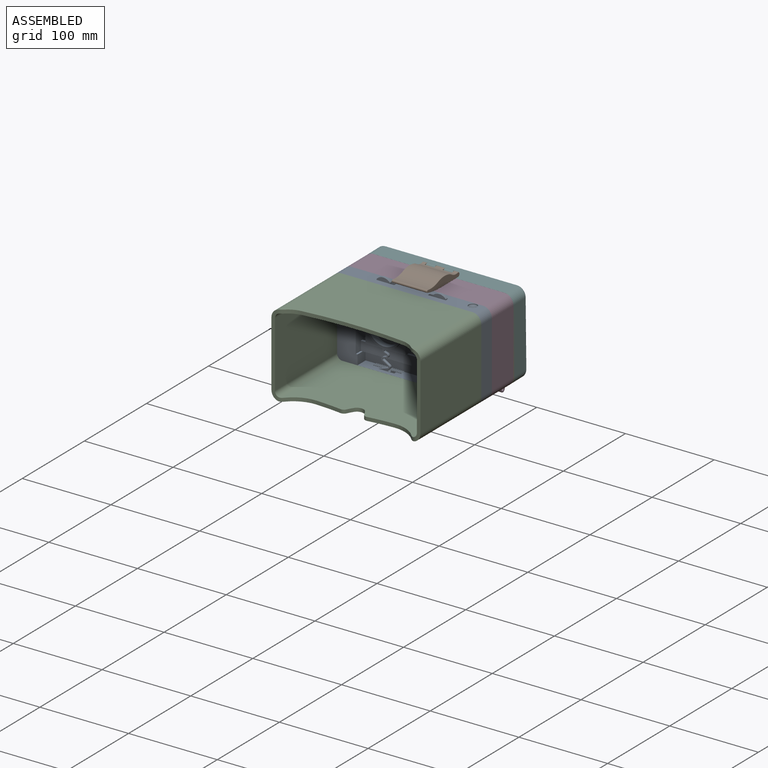
[diagram: assembled view]
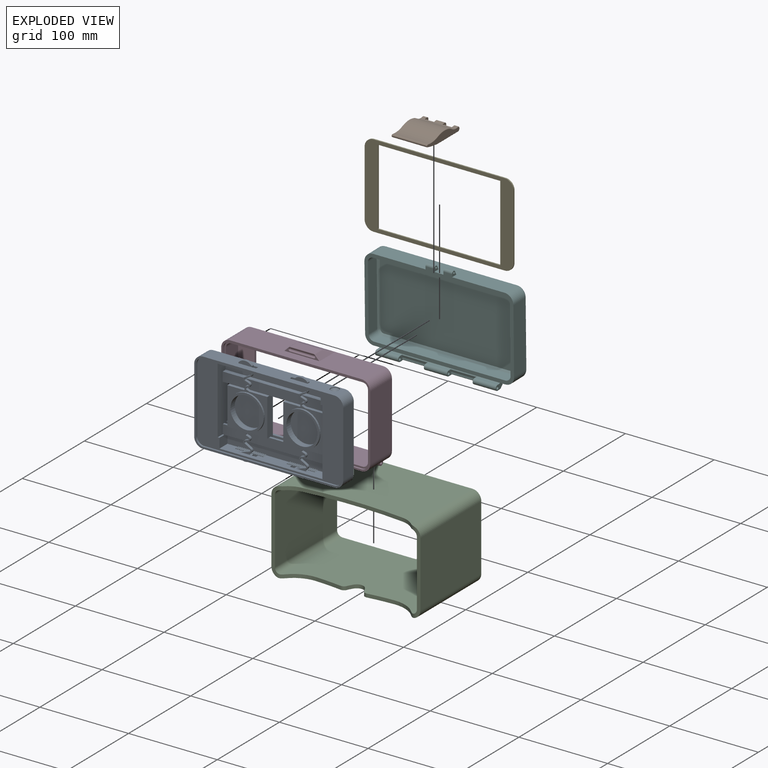
[diagram: exploded view]
GUIDED TOUR — MATED ASSEMBLY WITH SUBASSEMBLIES (Onshape document a9b572912d74d7733d4129e8, AutoMate assembly a9b572912d74d7733d4129e8_43571d5dbfc04769266b8114_0481766669fec78227c65f87_default)

This assembly has 15 component occurrences arranged in 6 top-level units: 5 individual components plus 1 subassembly (S0). The tour has two levels: first the top level, where each subassembly is treated as one rigid unit; then each subassembly is toured internally in its own section (nesting deeper than one subassembly level is flattened into its subassembly's section).

Components are labeled P0..P14 across the whole record; subassembly units are labeled S0..S0. A mate is a constraint between two units; its type names the relative motion it leaves free:
  CYLINDRICAL — leaves both rotation about and translation along the listed axis free,
  PLANAR — leaves sliding in the plane through the listed point (normal = the listed direction) and rotation about that normal free,
  REVOLUTE — leaves rotation about the listed axis free (a hinge),
  SLIDER — leaves translation along the listed axis free.
Axis/direction vectors are unit vectors and 'through' points are millimeter coordinates, both in the assembly's world frame.

TOP-LEVEL MATES (between units; each subassembly's internal mates are listed in its own section)
  1. PLANAR "Planar 9": P4 <-> S0, direction (1.000, 0.000, 0.000) through (84.00, -75.00, 0.00) mm
  2. PLANAR "Planar 5": S0 <-> P6, direction (0.000, 1.000, 0.000) through (21.31, -33.00, -23.61) mm
  3. REVOLUTE "Revolute 2": P6 <-> P13, axis (1.000, 0.000, 0.000) through (68.50, -3.00, -50.50) mm
  4. PLANAR "Planar 1": P6 <-> P8, direction (0.000, 1.000, 0.000) through (0.00, 0.00, 0.00) mm
  5. PLANAR "Planar 3": P8 <-> P6, direction (0.000, 0.000, -1.000) through (0.00, 0.75, -47.00) mm
  6. REVOLUTE "Revolute 1": P13 <-> P3, axis (-1.000, 0.000, 0.000) through (4.60, 2.01, 50.09) mm
  7. PLANAR "Planar 2": P6 <-> P8, direction (1.000, 0.000, 0.000) through (84.00, -75.00, 0.00) mm
  8. PLANAR "Planar 6": S0 <-> P6, direction (0.000, 0.000, -1.000) through (2.08, -43.54, -47.00) mm
  9. PLANAR "Planar 4": S0 <-> P6, direction (1.000, 0.000, 0.000) through (84.00, -43.50, -2.50) mm
  10. PLANAR "Planar 8": S0 <-> P4, direction (0.000, 0.000, -1.000) through (2.08, -43.54, -47.00) mm

TOP-LEVEL ASSEMBLY ORDER
  1. P13 — the base component [order verified]
  2. P8 [order verified]
  3. S0 [order verified]
  4. P6 [order verified]
  5. P3 [order verified]
  6. P4 [order verified]
(S0, P3, P8 verified with a relaxed clearance tolerance: the source model stores slight part interference there.)
Order-tag legend:
  [order verified] — this step's position reverses a verified removal order: the component was checked to insert without passing through the ones already placed.

Of the 15 component occurrences, 5 carry the full construction recipe — the FeatureScript program that regenerates the part's solid from scratch; the rest are supplied as boundary geometry only. Each toured unit is shown spotlighted twice — assembled, then exploded with a leader line back to its socket (green = recipe-attached component, orange = geometry-only, blue = subassembly unit; the rest desaturated gray).
NOTE — document 2 of 2 of this assembly tour. The two overview renders and the header above are repeated from document 1; the component sections below continue where the previous document stopped.
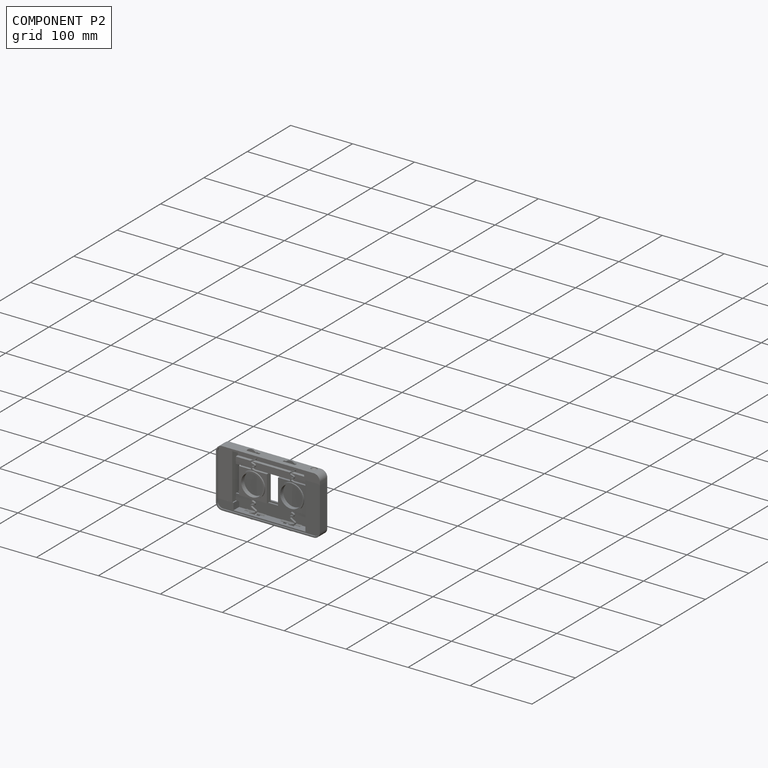
[diagram: component P2 — assembled]
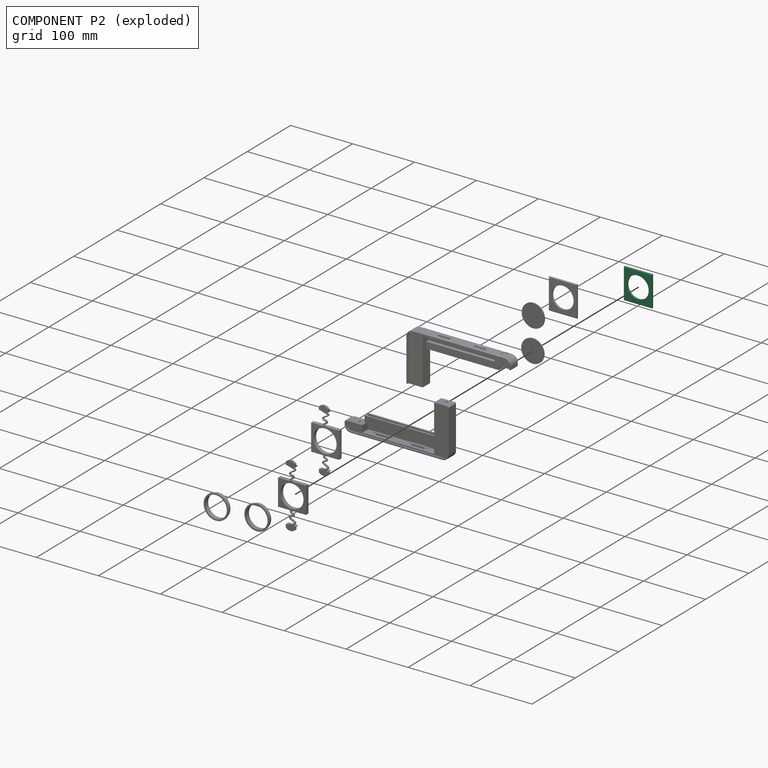
[diagram: component P2 — exploded]
COMPONENT P2 — recipe-attached (CADFS 00127663, mesh-verified: the recipe's output STEP matches this component's geometry to below the mesh-comparison resolution (tessellation chordal tolerance ~0.101 mm)).
Held by: CYLINDRICAL mate "Cylindrical 3" to P5; CYLINDRICAL mate "Cylindrical 3" to P5.
Construction recipe (FeatureScript — the CAD program that rebuilds this solid; sketch coordinates are in the units given by the * unit suffixes, e.g. mm):

FeatureScript 1511;
import(path : "onshape/std/geometry.fs", version : "1511.0");
import(path : "onshape/std/common.fs", version : "1511.0");
const mm = millimeter;
const VERTEX = EntityType.VERTEX;
const EDGE = EntityType.EDGE;
const FACE = EntityType.FACE;
const BODY = EntityType.BODY;
function v(x, y){return vector(x, y);}
function OD(order){return orderDisambiguation(order);}
function OSD(set){return originalSetDisambiguation(set);}
function TD(topology){return topologyDisambiguation(topology);}
function TDD(query){return trueDependencyDisambiguation(query);}
function sQuery(a, b, c) {return sketchEntityQuery(a, b, c);}

annotation { "Feature Type Name" : "Feature", "Feature Type Description" : "" }
export const myFeature = defineFeature(function(context is Context, id is Id, definition is map)
    precondition{}
    {
        {
            var Q0;
            Q0=qCreatedBy(makeId("Right.planeOp"),FACE);
            var sketch = newSketch(context, id + "F0", { "sketchPlane" : qUnion([Q0])});
            skLineSegment(sketch, "E0", {"start": v(0, 25) * mm, "end": v(0, -25) * mm});
            skLineSegment(sketch, "E1", {"start": v(0, -25) * mm, "end": v(-3, -25) * mm});
            skLineSegment(sketch, "E2", {"start": v(-3, -25) * mm, "end": v(-3, -21.25) * mm});
            skLineSegment(sketch, "E3", {"start": v(-3, -21.25) * mm, "end": v(-9, -21.25) * mm});
            skLineSegment(sketch, "E4", {"start": v(-9, -21.25) * mm, "end": v(-9, 21.25) * mm});
            skLineSegment(sketch, "E5", {"start": v(-9, 21.25) * mm, "end": v(-3, 21.25) * mm});
            skLineSegment(sketch, "E6", {"start": v(-3, 21.25) * mm, "end": v(-3, 25) * mm});
            skLineSegment(sketch, "E7", {"start": v(-3, 25) * mm, "end": v(0, 25) * mm});
            skSolve(sketch);
        }
        {
            var Q0;
            Q0=qSketchRegion(id+"F0",true);
            extrude(context, id + "F1", {"entities" : qUnion([Q0]), "endBound" : BoundingType.SYMMETRIC, "depth" : 45 * mm});
        }
        {
            var Q0;
            Q0=makeQuery(id+"F1.opExtrude","SWEPT_FACE",FACE,{"disambiguationData":[OSD([sQuery(id+"F0.wireOp",EDGE,"E4")])]});
            var sketch = newSketch(context, id + "F2", { "sketchPlane" : qUnion([Q0])});
            skCircle(sketch, "E8", {"center": v(0, 0) * mm, "radius": 18.6 * mm});
            skSolve(sketch);
        }
        {
            var Q0;
            Q0=qSketchRegion(id+"F2",true);
            extrude(context, id + "F3", {"entities" : qUnion([Q0]), "operationType" : NewBodyOperationType.REMOVE, "oppositeDirection" : true, "depth" : 6 * mm});
        }
        {
            var Q0;
            Q0=makeQuery(id+"F3.boolean.opBoolean","COPY",FACE,{"derivedFrom":makeQuery(id+"F3.opExtrude","CAP_FACE",FACE,{"disambiguationData":[OSD([sQuery(id+"F2.wireOp",EDGE,"E8")])],"isStart":false})});
            var sketch = newSketch(context, id + "F4", { "sketchPlane" : qUnion([Q0])});
            skCircle(sketch, "E9", {"center": v(0, 0) * mm, "radius": 17.5 * mm});
            skSolve(sketch);
        }
        {
            var Q0;
            Q0=qSketchRegion(id+"F4",true);
            extrude(context, id + "F5", {"entities" : qUnion([Q0]), "operationType" : NewBodyOperationType.REMOVE, "endBound" : BoundingType.UP_TO_NEXT, "oppositeDirection" : true, "depth" : 25 * mm});
        }
        {
            var Q0;
            Q0=makeQuery(id+"F1.opExtrude","SWEPT_FACE",FACE,{"disambiguationData":[OSD([sQuery(id+"F0.wireOp",EDGE,"E4")])]});
            var sketch = newSketch(context, id + "F6", { "sketchPlane" : qUnion([Q0])});
            skLineSegment(sketch, "E10", {"start": v(0, 42.2) * mm, "end": v(0, -42.2) * mm, "construction": true});
            skLineSegment(sketch, "E11", {"start": v(-1.5, 21.05) * mm, "end": v(-1.68, 21.11) * mm});
            skLineSegment(sketch, "E12", {"start": v(-1.6, 25.84) * mm, "end": v(0.72, 26.6) * mm});
            skLineSegment(sketch, "E13", {"start": v(0.72, 28.5) * mm, "end": v(-3.1, 29.74) * mm});
            skLineSegment(sketch, "E14", {"start": v(-3.57, 34.29) * mm, "end": v(2.83, 37.92) * mm});
            skLineSegment(sketch, "E15", {"start": v(2.64, 39.74) * mm, "end": v(-4.93, 42.2) * mm});
            skLineSegment(sketch, "E16", {"start": v(-8.5, 31.5) * mm, "end": v(-8.5, 23.6) * mm, "construction": true});
            skLineSegment(sketch, "E17", {"start": v(-1.13, 24.41) * mm, "end": v(1.18, 25.17) * mm});
            skLineSegment(sketch, "E18", {"start": v(1.18, 29.92) * mm, "end": v(-2.64, 31.16) * mm});
            skLineSegment(sketch, "E19", {"start": v(-2.83, 32.99) * mm, "end": v(3.57, 36.61) * mm});
            skLineSegment(sketch, "E20", {"start": v(3.1, 41.17) * mm, "end": v(-0.08, 42.2) * mm});
            skLineSegment(sketch, "E21", {"start": v(8.5, 39.41) * mm, "end": v(8.5, 27.54) * mm, "construction": true});
            skLineSegment(sketch, "E22", {"start": v(-4.93, 42.2) * mm, "end": v(-0.08, 42.2) * mm});
            skPoint(sketch, "E23.visualSharp", {"position": v(-4.8, 31.87) * mm});
            skArc(sketch, "E23.filletArc", {"start": v(-2.83, 32.99) * mm, "mid": v(-3.33, 32.01) * mm, "end": v(-2.64, 31.16) * mm});
            skPoint(sketch, "E24.visualSharp", {"position": v(-4.56, 23.3) * mm});
            skArc(sketch, "E24.filletArc", {"start": v(-1.13, 24.41) * mm, "mid": v(-1.82, 23.48) * mm, "end": v(-1.16, 22.52) * mm});
            skPoint(sketch, "E25.visualSharp", {"position": v(3.65, 27.54) * mm});
            skArc(sketch, "E25.filletArc", {"start": v(0.72, 26.6) * mm, "mid": v(1.4, 27.54) * mm, "end": v(0.72, 28.5) * mm});
            skPoint(sketch, "E26.visualSharp", {"position": v(4.8, 39.04) * mm});
            skArc(sketch, "E26.filletArc", {"start": v(2.83, 37.92) * mm, "mid": v(3.33, 38.89) * mm, "end": v(2.64, 39.74) * mm});
            skPoint(sketch, "E27.visualSharp", {"position": v(8.5, 39.41) * mm});
            skArc(sketch, "E27.filletArc", {"start": v(3.57, 36.61) * mm, "mid": v(4.82, 39.04) * mm, "end": v(3.1, 41.17) * mm});
            skPoint(sketch, "E28.visualSharp", {"position": v(-8.5, 31.5) * mm});
            skArc(sketch, "E28.filletArc", {"start": v(-3.57, 34.29) * mm, "mid": v(-4.82, 31.86) * mm, "end": v(-3.1, 29.74) * mm});
            skPoint(sketch, "E29.visualSharp", {"position": v(8.5, 27.54) * mm});
            skArc(sketch, "E29.filletArc", {"start": v(1.18, 25.17) * mm, "mid": v(2.9, 27.54) * mm, "end": v(1.18, 29.92) * mm});
            skPoint(sketch, "E30.visualSharp", {"position": v(-8.5, 23.6) * mm});
            skArc(sketch, "E30.filletArc", {"start": v(-1.6, 25.84) * mm, "mid": v(-3.32, 23.5) * mm, "end": v(-1.68, 21.11) * mm});
            skLineSegment(sketch, "E31", {"start": v(0, 0) * mm, "end": v(22.5, 0) * mm, "construction": true});
            skArc(sketch, "E32.MirrorCS", {"start": v(-2.83, -32.99) * mm, "mid": v(-3.33, -32.01) * mm, "end": v(-2.64, -31.16) * mm});
            skArc(sketch, "E33.MirrorCS", {"start": v(2.83, -37.92) * mm, "mid": v(3.33, -38.89) * mm, "end": v(2.64, -39.74) * mm});
            skArc(sketch, "E34.MirrorCS", {"start": v(-1.13, -24.41) * mm, "mid": v(-1.82, -23.48) * mm, "end": v(-1.16, -22.52) * mm});
            skLineSegment(sketch, "E35.MirrorCS", {"start": v(3.1, -41.17) * mm, "end": v(-0.08, -42.2) * mm});
            skLineSegment(sketch, "E36.MirrorCS", {"start": v(-1.5, -21.05) * mm, "end": v(-1.68, -21.11) * mm});
            skArc(sketch, "E37.MirrorCS", {"start": v(0.72, -26.6) * mm, "mid": v(1.4, -27.54) * mm, "end": v(0.72, -28.5) * mm});
            skArc(sketch, "E38.MirrorCS", {"start": v(1.18, -25.17) * mm, "mid": v(2.9, -27.54) * mm, "end": v(1.18, -29.92) * mm});
            skArc(sketch, "E39.MirrorCS", {"start": v(3.57, -36.61) * mm, "mid": v(4.82, -39.04) * mm, "end": v(3.1, -41.17) * mm});
            skArc(sketch, "E40.MirrorCS", {"start": v(-3.57, -34.29) * mm, "mid": v(-4.82, -31.86) * mm, "end": v(-3.1, -29.74) * mm});
            skLineSegment(sketch, "E41.MirrorCS", {"start": v(-1.13, -24.41) * mm, "end": v(1.18, -25.17) * mm});
            skLineSegment(sketch, "E42.MirrorCS", {"start": v(-2.83, -32.99) * mm, "end": v(3.57, -36.61) * mm});
            skLineSegment(sketch, "E43.MirrorCS", {"start": v(2.64, -39.74) * mm, "end": v(-4.93, -42.2) * mm});
            skLineSegment(sketch, "E44.MirrorCS", {"start": v(-3.57, -34.29) * mm, "end": v(2.83, -37.92) * mm});
            skLineSegment(sketch, "E45.MirrorCS", {"start": v(0.72, -28.5) * mm, "end": v(-3.1, -29.74) * mm});
            skLineSegment(sketch, "E46.MirrorCS", {"start": v(-1.6, -25.84) * mm, "end": v(0.72, -26.6) * mm});
            skPoint(sketch, "E47.MirrorP", {"position": v(-4.56, -23.3) * mm});
            skPoint(sketch, "E48.MirrorP", {"position": v(4.8, -39.04) * mm});
            skLineSegment(sketch, "E49.MirrorCS", {"start": v(-4.93, -42.2) * mm, "end": v(-0.08, -42.2) * mm});
            skLineSegment(sketch, "E50.MirrorCS", {"start": v(1.18, -29.92) * mm, "end": v(-2.64, -31.16) * mm});
            skPoint(sketch, "E51.MirrorP", {"position": v(-8.5, -31.5) * mm});
            skPoint(sketch, "E52.MirrorP", {"position": v(8.5, -27.54) * mm});
            skPoint(sketch, "E53.MirrorP", {"position": v(3.65, -27.54) * mm});
            skPoint(sketch, "E54.MirrorP", {"position": v(8.5, -39.41) * mm});
            skPoint(sketch, "E55.MirrorP", {"position": v(-8.5, -23.6) * mm});
            skArc(sketch, "E56.MirrorCS", {"start": v(-1.6, -25.84) * mm, "mid": v(-3.32, -23.5) * mm, "end": v(-1.68, -21.11) * mm});
            skPoint(sketch, "E57.MirrorP", {"position": v(-4.8, -31.87) * mm});
            skPoint(sketch, "E58.orphan", {"position": v(1.5, 21.25) * mm});
            skLineSegment(sketch, "E59", {"start": v(-1.5, 21.05) * mm, "end": v(2.89, 21.05) * mm});
            skLineSegment(sketch, "E60", {"start": v(2.89, 21.05) * mm, "end": v(-1.16, 22.52) * mm});
            skLineSegment(sketch, "E61", {"start": v(-1.5, -21.05) * mm, "end": v(2.89, -21.05) * mm});
            skLineSegment(sketch, "E62", {"start": v(2.89, -21.05) * mm, "end": v(-1.16, -22.52) * mm});
            skSolve(sketch);
        }
        {
            var Q0;
            Q0=qSketchRegion(id+"F6",true);
            extrude(context, id + "F7", {"entities" : qUnion([Q0]), "operationType" : NewBodyOperationType.ADD, "oppositeDirection" : true, "depth" : 3 * mm});
        }
        {
            var Q0;
            Q0=makeQuery(id+"F7.boolean.opBoolean","MERGE",FACE,{"derivedFrom":[makeQuery(id+"F1.opExtrude","SWEPT_FACE",FACE,{"disambiguationData":[OSD([sQuery(id+"F0.wireOp",EDGE,"E4")])]}),makeQuery(id+"F7.opExtrude","CAP_FACE",FACE,{"disambiguationData":[OSD([sQuery(id+"F6.wireOp",EDGE,"E11"),sQuery(id+"F6.wireOp",EDGE,"E12"),sQuery(id+"F6.wireOp",EDGE,"E13"),sQuery(id+"F6.wireOp",EDGE,"E14"),sQuery(id+"F6.wireOp",EDGE,"E15"),sQuery(id+"F6.wireOp",EDGE,"E17"),sQuery(id+"F6.wireOp",EDGE,"E18"),sQuery(id+"F6.wireOp",EDGE,"E19"),sQuery(id+"F6.wireOp",EDGE,"E20"),sQuery(id+"F6.wireOp",EDGE,"E22"),sQuery(id+"F6.wireOp",EDGE,"E23.filletArc"),sQuery(id+"F6.wireOp",EDGE,"E24.filletArc"),sQuery(id+"F6.wireOp",EDGE,"E25.filletArc"),sQuery(id+"F6.wireOp",EDGE,"E26.filletArc"),sQuery(id+"F6.wireOp",EDGE,"E27.filletArc"),sQuery(id+"F6.wireOp",EDGE,"E28.filletArc"),sQuery(id+"F6.wireOp",EDGE,"E29.filletArc"),sQuery(id+"F6.wireOp",EDGE,"E30.filletArc"),sQuery(id+"F6.wireOp",EDGE,"E59"),sQuery(id+"F6.wireOp",EDGE,"E60")])],"isStart":true}),makeQuery(id+"F7.opExtrude","CAP_FACE",FACE,{"disambiguationData":[OSD([sQuery(id+"F6.wireOp",EDGE,"E32.MirrorCS"),sQuery(id+"F6.wireOp",EDGE,"E33.MirrorCS"),sQuery(id+"F6.wireOp",EDGE,"E34.MirrorCS"),sQuery(id+"F6.wireOp",EDGE,"E35.MirrorCS"),sQuery(id+"F6.wireOp",EDGE,"E36.MirrorCS"),sQuery(id+"F6.wireOp",EDGE,"E37.MirrorCS"),sQuery(id+"F6.wireOp",EDGE,"E38.MirrorCS"),sQuery(id+"F6.wireOp",EDGE,"E39.MirrorCS"),sQuery(id+"F6.wireOp",EDGE,"E40.MirrorCS"),sQuery(id+"F6.wireOp",EDGE,"E41.MirrorCS"),sQuery(id+"F6.wireOp",EDGE,"E42.MirrorCS"),sQuery(id+"F6.wireOp",EDGE,"E43.MirrorCS"),sQuery(id+"F6.wireOp",EDGE,"E44.MirrorCS"),sQuery(id+"F6.wireOp",EDGE,"E45.MirrorCS"),sQuery(id+"F6.wireOp",EDGE,"E46.MirrorCS"),sQuery(id+"F6.wireOp",EDGE,"E49.MirrorCS"),sQuery(id+"F6.wireOp",EDGE,"E50.MirrorCS"),sQuery(id+"F6.wireOp",EDGE,"E56.MirrorCS"),sQuery(id+"F6.wireOp",EDGE,"E61"),sQuery(id+"F6.wireOp",EDGE,"E62")])],"isStart":true})]});
            var sketch = newSketch(context, id + "F12", { "sketchPlane" : qUnion([Q0])});
            skLineSegment(sketch, "E63", {"start": v(-10, 41.7) * mm, "end": v(5, 41.7) * mm});
            skLineSegment(sketch, "E64", {"start": v(-10, 41.7) * mm, "end": v(-10, 45.1) * mm});
            skLineSegment(sketch, "E65", {"start": v(5, 45.1) * mm, "end": v(5, 41.7) * mm});
            skArc(sketch, "E66", {"start": v(4.86, 45.45) * mm, "mid": v(-2.5, 48.69) * mm, "end": v(-9.87, 45.45) * mm});
            skLineSegment(sketch, "E67", {"start": v(-2.5, 42.2) * mm, "end": v(-2.5, 41.7) * mm});
            skPoint(sketch, "E68.visualSharp", {"position": v(-11.33, 62.8) * mm});
            skPoint(sketch, "E69.visualSharp", {"position": v(-10, 45.3) * mm});
            skArc(sketch, "E69.filletArc", {"start": v(-9.87, 45.45) * mm, "mid": v(-9.97, 45.29) * mm, "end": v(-10, 45.1) * mm});
            skPoint(sketch, "E70.visualSharp", {"position": v(5, 45.3) * mm});
            skArc(sketch, "E70.filletArc", {"start": v(5, 45.1) * mm, "mid": v(4.96, 45.29) * mm, "end": v(4.86, 45.45) * mm});
            skLineSegment(sketch, "E71", {"start": v(0, 0) * mm, "end": v(18.6, 0) * mm, "construction": true});
            skLineSegment(sketch, "E72.MirrorCS", {"start": v(-10, -41.7) * mm, "end": v(5, -41.7) * mm});
            skArc(sketch, "E73.MirrorCS", {"start": v(4.86, -45.45) * mm, "mid": v(-2.5, -48.69) * mm, "end": v(-9.87, -45.45) * mm});
            skLineSegment(sketch, "E74.MirrorCS", {"start": v(-10, -41.7) * mm, "end": v(-10, -45.1) * mm});
            skLineSegment(sketch, "E75.MirrorCS", {"start": v(5, -45.1) * mm, "end": v(5, -41.7) * mm});
            skArc(sketch, "E76.MirrorCS", {"start": v(5, -45.1) * mm, "mid": v(4.96, -45.29) * mm, "end": v(4.86, -45.45) * mm});
            skArc(sketch, "E77.MirrorCS", {"start": v(-9.87, -45.45) * mm, "mid": v(-9.97, -45.29) * mm, "end": v(-10, -45.1) * mm});
            skLineSegment(sketch, "E78", {"start": v(-2.5, 45.1) * mm, "end": v(-2.5, 48.69) * mm, "construction": true});
            skLineSegment(sketch, "E79", {"start": v(-2.5, 45.1) * mm, "end": v(-10, 45.1) * mm, "construction": true});
            skSolve(sketch);
        }
        {
            var Q0;
            Q0=qSketchRegion(id+"F12",true);
            extrude(context, id + "F8", {"entities" : qUnion([Q0]), "operationType" : NewBodyOperationType.ADD, "oppositeDirection" : true, "depth" : 3 * mm});
        }
        {
            var Q0;
            Q0=makeQuery(id+"F8.boolean.opBoolean","MERGE",FACE,{"derivedFrom":[makeQuery(id+"F7.opExtrude","CAP_FACE",FACE,{"disambiguationData":[OSD([sQuery(id+"F6.wireOp",EDGE,"E11"),sQuery(id+"F6.wireOp",EDGE,"E12"),sQuery(id+"F6.wireOp",EDGE,"E13"),sQuery(id+"F6.wireOp",EDGE,"E14"),sQuery(id+"F6.wireOp",EDGE,"E15"),sQuery(id+"F6.wireOp",EDGE,"E17"),sQuery(id+"F6.wireOp",EDGE,"E18"),sQuery(id+"F6.wireOp",EDGE,"E19"),sQuery(id+"F6.wireOp",EDGE,"E20"),sQuery(id+"F6.wireOp",EDGE,"E22"),sQuery(id+"F6.wireOp",EDGE,"E23.filletArc"),sQuery(id+"F6.wireOp",EDGE,"E24.filletArc"),sQuery(id+"F6.wireOp",EDGE,"E25.filletArc"),sQuery(id+"F6.wireOp",EDGE,"E26.filletArc"),sQuery(id+"F6.wireOp",EDGE,"E27.filletArc"),sQuery(id+"F6.wireOp",EDGE,"E28.filletArc"),sQuery(id+"F6.wireOp",EDGE,"E29.filletArc"),sQuery(id+"F6.wireOp",EDGE,"E30.filletArc"),sQuery(id+"F6.wireOp",EDGE,"E59"),sQuery(id+"F6.wireOp",EDGE,"E60")])],"isStart":false}),makeQuery(id+"F8.opExtrude","CAP_FACE",FACE,{"disambiguationData":[OSD([sQuery(id+"F12.wireOp",EDGE,"E63"),sQuery(id+"F12.wireOp",EDGE,"E64"),sQuery(id+"F12.wireOp",EDGE,"E65"),sQuery(id+"F12.wireOp",EDGE,"E66"),sQuery(id+"F12.wireOp",EDGE,"E69.filletArc"),sQuery(id+"F12.wireOp",EDGE,"E70.filletArc")])],"isStart":false})]});
            var sketch = newSketch(context, id + "F13", { "sketchPlane" : qUnion([Q0])});
            skLineSegment(sketch, "E80", {"start": v(10, 41.7) * mm, "end": v(10, 41.9) * mm});
            skLineSegment(sketch, "E81", {"start": v(10, 41.9) * mm, "end": v(9, 42.9) * mm});
            skLineSegment(sketch, "E82", {"start": v(9, 42.9) * mm, "end": v(8, 41.9) * mm});
            skLineSegment(sketch, "E83", {"start": v(8, 41.9) * mm, "end": v(7, 42.9) * mm});
            skLineSegment(sketch, "E84", {"start": v(7, 42.9) * mm, "end": v(6, 41.9) * mm});
            skLineSegment(sketch, "E85", {"start": v(6, 41.9) * mm, "end": v(5, 42.9) * mm});
            skLineSegment(sketch, "E86", {"start": v(4, 41.9) * mm, "end": v(5, 42.9) * mm});
            skLineSegment(sketch, "E87", {"start": v(4, 41.9) * mm, "end": v(3, 42.9) * mm});
            skLineSegment(sketch, "E88", {"start": v(3, 42.9) * mm, "end": v(2, 41.9) * mm});
            skLineSegment(sketch, "E89", {"start": v(2, 41.9) * mm, "end": v(1, 42.9) * mm});
            skLineSegment(sketch, "E90", {"start": v(1, 42.9) * mm, "end": v(0, 41.9) * mm});
            skLineSegment(sketch, "E91", {"start": v(0, 41.9) * mm, "end": v(-1, 42.9) * mm});
            skLineSegment(sketch, "E92", {"start": v(-1, 42.9) * mm, "end": v(-2, 41.9) * mm});
            skLineSegment(sketch, "E93", {"start": v(-2, 41.9) * mm, "end": v(-3, 42.9) * mm});
            skLineSegment(sketch, "E94", {"start": v(-3, 42.9) * mm, "end": v(-4, 41.9) * mm});
            skLineSegment(sketch, "E95", {"start": v(-4, 41.9) * mm, "end": v(-5, 42.9) * mm});
            skLineSegment(sketch, "E96", {"start": v(-5, 42.9) * mm, "end": v(-5, 41.7) * mm});
            skPoint(sketch, "E97.end.orphan", {"position": v(-6, 41.9) * mm});
            skLineSegment(sketch, "E98", {"start": v(10, 41.7) * mm, "end": v(-5, 41.7) * mm});
            skLineSegment(sketch, "E99", {"start": v(0, 0) * mm, "end": v(17.5, 0) * mm, "construction": true});
            skLineSegment(sketch, "E100.MirrorCS", {"start": v(-5, -42.9) * mm, "end": v(-5, -41.7) * mm});
            skLineSegment(sketch, "E101.MirrorCS", {"start": v(-4, -41.9) * mm, "end": v(-5, -42.9) * mm});
            skLineSegment(sketch, "E102.MirrorCS", {"start": v(10, -41.7) * mm, "end": v(-5, -41.7) * mm});
            skLineSegment(sketch, "E103.MirrorCS", {"start": v(-3, -42.9) * mm, "end": v(-4, -41.9) * mm});
            skLineSegment(sketch, "E104.MirrorCS", {"start": v(-2, -41.9) * mm, "end": v(-3, -42.9) * mm});
            skLineSegment(sketch, "E105.MirrorCS", {"start": v(-1, -42.9) * mm, "end": v(-2, -41.9) * mm});
            skLineSegment(sketch, "E106.MirrorCS", {"start": v(0, -41.9) * mm, "end": v(-1, -42.9) * mm});
            skLineSegment(sketch, "E107.MirrorCS", {"start": v(1, -42.9) * mm, "end": v(0, -41.9) * mm});
            skLineSegment(sketch, "E108.MirrorCS", {"start": v(2, -41.9) * mm, "end": v(1, -42.9) * mm});
            skLineSegment(sketch, "E109.MirrorCS", {"start": v(3, -42.9) * mm, "end": v(2, -41.9) * mm});
            skLineSegment(sketch, "E110.MirrorCS", {"start": v(4, -41.9) * mm, "end": v(3, -42.9) * mm});
            skLineSegment(sketch, "E111.MirrorCS", {"start": v(4, -41.9) * mm, "end": v(5, -42.9) * mm});
            skLineSegment(sketch, "E112.MirrorCS", {"start": v(6, -41.9) * mm, "end": v(5, -42.9) * mm});
            skLineSegment(sketch, "E113.MirrorCS", {"start": v(8, -41.9) * mm, "end": v(7, -42.9) * mm});
            skLineSegment(sketch, "E114.MirrorCS", {"start": v(7, -42.9) * mm, "end": v(6, -41.9) * mm});
            skLineSegment(sketch, "E115.MirrorCS", {"start": v(9, -42.9) * mm, "end": v(8, -41.9) * mm});
            skLineSegment(sketch, "E116.MirrorCS", {"start": v(10, -41.9) * mm, "end": v(9, -42.9) * mm});
            skLineSegment(sketch, "E117.MirrorCS", {"start": v(10, -41.7) * mm, "end": v(10, -41.9) * mm});
            skSolve(sketch);
        }
        {
            var Q0;
            Q0=qSketchRegion(id+"F13",true);
            extrude(context, id + "F14", {"entities" : qUnion([Q0]), "operationType" : NewBodyOperationType.ADD, "depth" : 3 * mm});
        }
        {
            var Q0;
            Q0=makeQuery(id+"F7.boolean.opBoolean","INTERSECT",EDGE,{"derivedFrom":[makeQuery(id+"F1.opExtrude","SWEPT_FACE",FACE,{"disambiguationData":[OSD([sQuery(id+"F0.wireOp",EDGE,"E5")])]}),makeQuery(id+"F7.opExtrude","SWEPT_FACE",FACE,{"disambiguationData":[OSD([sQuery(id+"F6.wireOp",EDGE,"E30.filletArc")])]})]});
            var Q1;
            Q1=makeQuery(id+"F7.boolean.opBoolean","INTERSECT",EDGE,{"derivedFrom":[makeQuery(id+"F1.opExtrude","SWEPT_FACE",FACE,{"disambiguationData":[OSD([sQuery(id+"F0.wireOp",EDGE,"E5")])]}),makeQuery(id+"F7.opExtrude","SWEPT_FACE",FACE,{"disambiguationData":[OSD([sQuery(id+"F6.wireOp",EDGE,"E60")])]})]});
            var Q2;
            Q2=makeQuery(id+"F8.boolean.opBoolean","INTERSECT",EDGE,{"derivedFrom":[makeQuery(id+"F7.opExtrude","SWEPT_FACE",FACE,{"disambiguationData":[OSD([sQuery(id+"F6.wireOp",EDGE,"E15")])]}),makeQuery(id+"F8.opExtrude","SWEPT_FACE",FACE,{"disambiguationData":[OSD([sQuery(id+"F12.wireOp",EDGE,"E63")])]})]});
            var Q3;
            Q3=makeQuery(id+"F8.boolean.opBoolean","INTERSECT",EDGE,{"derivedFrom":[makeQuery(id+"F7.opExtrude","SWEPT_FACE",FACE,{"disambiguationData":[OSD([sQuery(id+"F6.wireOp",EDGE,"E20")])]}),makeQuery(id+"F8.opExtrude","SWEPT_FACE",FACE,{"disambiguationData":[OSD([sQuery(id+"F12.wireOp",EDGE,"E63")])]})]});
            var Q4;
            Q4=makeQuery(id+"F7.boolean.opBoolean","INTERSECT",EDGE,{"derivedFrom":[makeQuery(id+"F1.opExtrude","SWEPT_FACE",FACE,{"disambiguationData":[OSD([sQuery(id+"F0.wireOp",EDGE,"E3")])]}),makeQuery(id+"F7.opExtrude","SWEPT_FACE",FACE,{"disambiguationData":[OSD([sQuery(id+"F6.wireOp",EDGE,"E56.MirrorCS")])]})]});
            var Q5;
            Q5=makeQuery(id+"F8.boolean.opBoolean","INTERSECT",EDGE,{"derivedFrom":[makeQuery(id+"F7.opExtrude","SWEPT_FACE",FACE,{"disambiguationData":[OSD([sQuery(id+"F6.wireOp",EDGE,"E43.MirrorCS")])]}),makeQuery(id+"F8.opExtrude","SWEPT_FACE",FACE,{"disambiguationData":[OSD([sQuery(id+"F12.wireOp",EDGE,"E72.MirrorCS")])]})]});
            var Q6;
            Q6=makeQuery(id+"F7.boolean.opBoolean","INTERSECT",EDGE,{"derivedFrom":[makeQuery(id+"F1.opExtrude","SWEPT_FACE",FACE,{"disambiguationData":[OSD([sQuery(id+"F0.wireOp",EDGE,"E3")])]}),makeQuery(id+"F7.opExtrude","SWEPT_FACE",FACE,{"disambiguationData":[OSD([sQuery(id+"F6.wireOp",EDGE,"E62")])]})]});
            var Q7;
            Q7=makeQuery(id+"F8.boolean.opBoolean","INTERSECT",EDGE,{"derivedFrom":[makeQuery(id+"F7.opExtrude","SWEPT_FACE",FACE,{"disambiguationData":[OSD([sQuery(id+"F6.wireOp",EDGE,"E35.MirrorCS")])]}),makeQuery(id+"F8.opExtrude","SWEPT_FACE",FACE,{"disambiguationData":[OSD([sQuery(id+"F12.wireOp",EDGE,"E72.MirrorCS")])]})]});
            fillet(context, id + "F9", {"entities" : qUnion([Q0, Q1, Q2, Q3, Q4, Q5, Q6, Q7]), "radius" : 1 * mm, "tangentPropagation" : true, "allowEdgeOverflow" : false});
        }
        {
            var Q0;
            Q0=makeQuery(id+"F1.opExtrude","CAP_FACE",FACE,{"disambiguationData":[OSD([sQuery(id+"F0.wireOp",EDGE,"E0"),sQuery(id+"F0.wireOp",EDGE,"E1"),sQuery(id+"F0.wireOp",EDGE,"E2"),sQuery(id+"F0.wireOp",EDGE,"E3"),sQuery(id+"F0.wireOp",EDGE,"E4"),sQuery(id+"F0.wireOp",EDGE,"E5"),sQuery(id+"F0.wireOp",EDGE,"E6"),sQuery(id+"F0.wireOp",EDGE,"E7")])],"isStart":false});
            var sketch = newSketch(context, id + "F15", { "sketchPlane" : qUnion([Q0])});
            skLineSegment(sketch, "E118.bottom", {"start": v(-9, 48.7) * mm, "end": v(-3, 48.7) * mm});
            skLineSegment(sketch, "E118.top", {"start": v(-9, -48.7) * mm, "end": v(-3, -48.7) * mm});
            skLineSegment(sketch, "E118.left", {"start": v(-9, 48.7) * mm, "end": v(-9, -48.7) * mm});
            skLineSegment(sketch, "E118.right", {"start": v(-3, 48.7) * mm, "end": v(-3, -48.7) * mm});
            skSolve(sketch);
        }
        {
            var Q0;
            Q0 = qSketchRegion(id + "F15", true);
            extrude(context, id + "F10", {"entities" : qUnion([Q0]), "operationType" : NewBodyOperationType.REMOVE, "endBound" : BoundingType.THROUGH_ALL, "oppositeDirection" : true, "depth" : 25 * mm});
        }
        {
            var Q0;
            Q0=makeQuery(id+"F1.opExtrude","SWEPT_EDGE",EDGE,{"disambiguationData":[OSD([sQuery(id+"F0.wireOp",EDGE,"E6"),sQuery(id+"F0.wireOp",EDGE,"E7")])]});
            var Q1;
            Q1=makeQuery(id+"F1.opExtrude","SWEPT_EDGE",EDGE,{"disambiguationData":[OSD([sQuery(id+"F0.wireOp",EDGE,"E0"),sQuery(id+"F0.wireOp",EDGE,"E7")])]});
            var Q2;
            Q2=makeQuery(id+"F1.opExtrude","SWEPT_EDGE",EDGE,{"disambiguationData":[OSD([sQuery(id+"F0.wireOp",EDGE,"E1"),sQuery(id+"F0.wireOp",EDGE,"E2")])]});
            var Q3;
            Q3=makeQuery(id+"F1.opExtrude","SWEPT_EDGE",EDGE,{"disambiguationData":[OSD([sQuery(id+"F0.wireOp",EDGE,"E0"),sQuery(id+"F0.wireOp",EDGE,"E1")])]});
            fillet(context, id + "F11", {"entities" : qUnion([Q0, Q1, Q2, Q3]), "radius" : 1.5 * mm, "tangentPropagation" : true, "allowEdgeOverflow" : false});
        }
    });
PROVENANCE & LICENSES
Assembly (occurrences, transforms, mates, per-part STEP geometry): AutoMate dataset, Zenodo record 7776208, CC0.
Construction recipes: CADFS (HuggingFace VladPyatov/CADFS, CC-BY-4.0, layered over the ABC dataset), FeatureScript reconstruction programs keyed by ABC model id.
Join: ABC meta listings map ABC model id -> Onshape documentId; within a shared document, parts are matched by geometric signature (bounding-box dims + volume at 0.1% relative tolerance, exact B-rep face/solid counts).
Verification: 5 of this assembly's 15 components carry a recipe attachment, and every attachment is mesh-verified: the CADFS STEP and the AutoMate member STEP were compared as meshes in their shared local frame (symmetric sampled-point-to-mesh distance); worst across the 5 attachments: below the mesh-comparison resolution (tessellation chordal tolerance ~0.289 mm) on a 193 mm part.
Renders: orthographic iso camera (az 35 / el 25); the floor grid conveys scale (grid pitch printed in each image; no ruler). In the exploded view each component is displaced by its stored offset vector: the offsets alone carry the explosion direction (mate normal/axis signs are not orientation cues and do not encode it), and separation distances are assigned per mate-chain, not proportionally to assembly-order depth.
